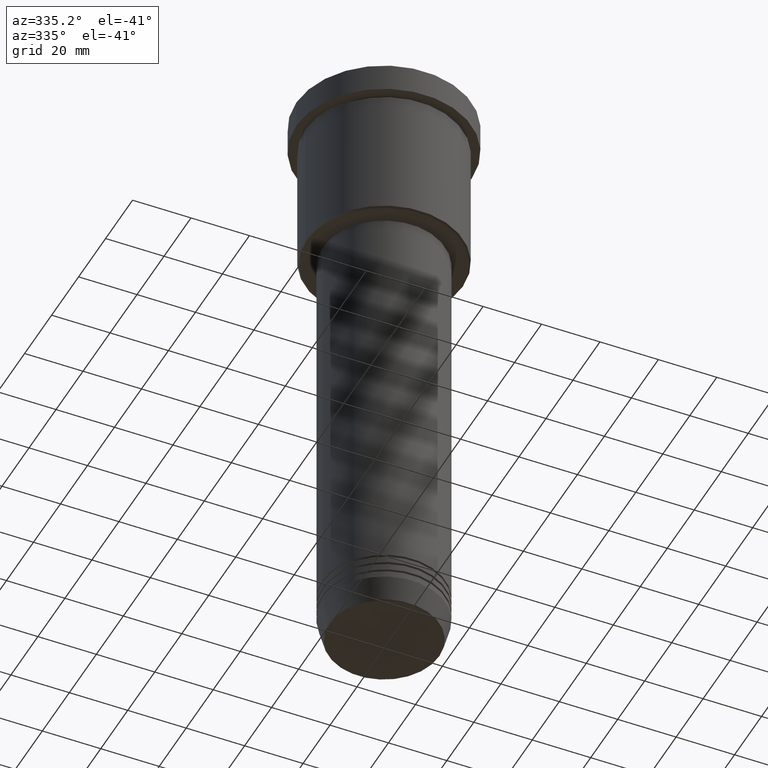
[diagram: clean part render]
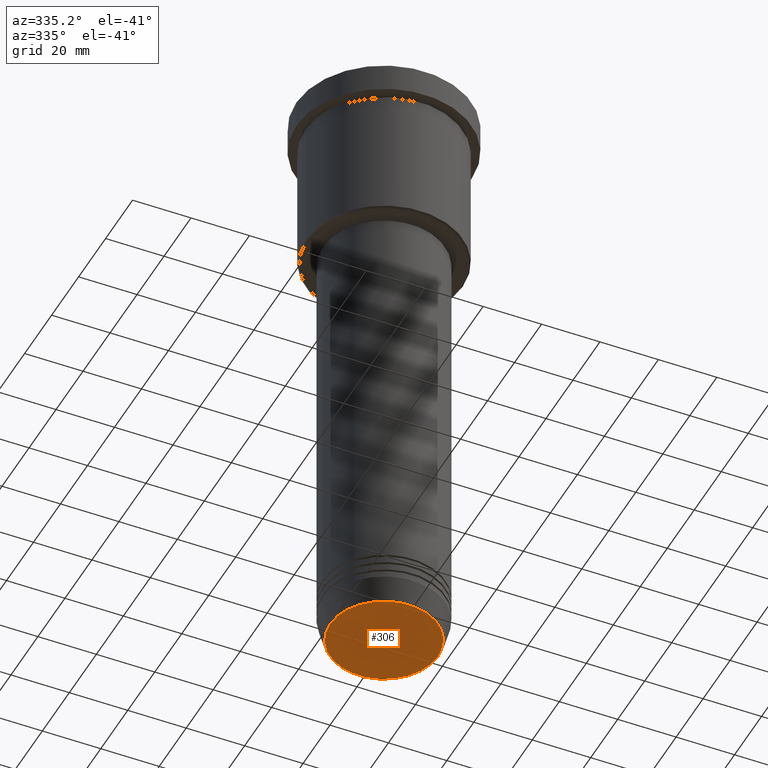
[diagram: same view with one face highlighted and labeled with its STEP entity id]
A machine part, auxiliary view. The second image highlights one B-rep face of the part: STEP entity #306.
In plain terms, the highlighted planar face has unit normal (0, -0, 1).
Its self-contained STEP definition (entity closure, byte-faithful):
#27 = EDGE_CURVE ( 'NONE', #690, #997, #751, .T. ) ;
#32 = DIRECTION ( 'NONE',  ( 1.000000000000000000, 0.000000000000000000, 0.000000000000000000 ) ) ;
#266 = CARTESIAN_POINT ( 'NONE',  ( 0.000000000000000000, 0.000000000000000000, -211.0000000000000284 ) ) ;
#290 = AXIS2_PLACEMENT_3D ( 'NONE', #1176, #806, #547 ) ;
#297 = CARTESIAN_POINT ( 'NONE',  ( 0.000000000000000000, 0.000000000000000000, -211.0000000000000284 ) ) ;
#306 = ADVANCED_FACE ( 'NONE', ( #451 ), #1169, .F. ) ;
#343 = EDGE_CURVE ( 'NONE', #997, #690, #871, .T. ) ;
#348 = AXIS2_PLACEMENT_3D ( 'NONE', #266, #990, #367 ) ;
#367 = DIRECTION ( 'NONE',  ( 1.000000000000000000, 0.000000000000000000, 0.000000000000000000 ) ) ;
#451 = FACE_OUTER_BOUND ( 'NONE', #729, .T. ) ;
#530 = CARTESIAN_POINT ( 'NONE',  ( 18.47274296656153680, 0.000000000000000000, -211.0000000000000284 ) ) ;
#547 = DIRECTION ( 'NONE',  ( 1.000000000000000000, 0.000000000000000000, 0.000000000000000000 ) ) ;
#599 = DIRECTION ( 'NONE',  ( 0.000000000000000000, 0.000000000000000000, -1.000000000000000000 ) ) ;
#688 = CARTESIAN_POINT ( 'NONE',  ( -18.47274296656153680, 2.291831503831603257E-15, -211.0000000000000284 ) ) ;
#690 = VERTEX_POINT ( 'NONE', #530 ) ;
#729 = EDGE_LOOP ( 'NONE', ( #851, #1159 ) ) ;
#751 = CIRCLE ( 'NONE', #1035, 18.47274296656153680 ) ;
#806 = DIRECTION ( 'NONE',  ( 0.000000000000000000, -0.000000000000000000, 1.000000000000000000 ) ) ;
#851 = ORIENTED_EDGE ( 'NONE', *, *, #27, .T. ) ;
#871 = CIRCLE ( 'NONE', #348, 18.47274296656153680 ) ;
#990 = DIRECTION ( 'NONE',  ( 0.000000000000000000, 0.000000000000000000, -1.000000000000000000 ) ) ;
#997 = VERTEX_POINT ( 'NONE', #688 ) ;
#1035 = AXIS2_PLACEMENT_3D ( 'NONE', #297, #599, #32 ) ;
#1159 = ORIENTED_EDGE ( 'NONE', *, *, #343, .T. ) ;
#1169 = PLANE ( 'NONE',  #290 ) ;
#1176 = CARTESIAN_POINT ( 'NONE',  ( 0.000000000000000000, 0.000000000000000000, -211.0000000000000284 ) ) ;